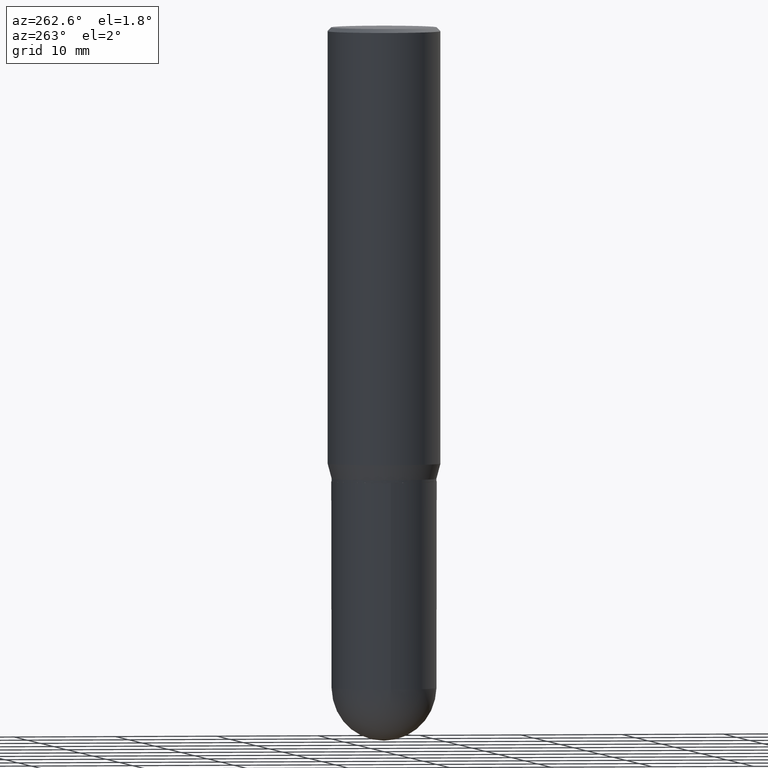
[diagram: clean part render]
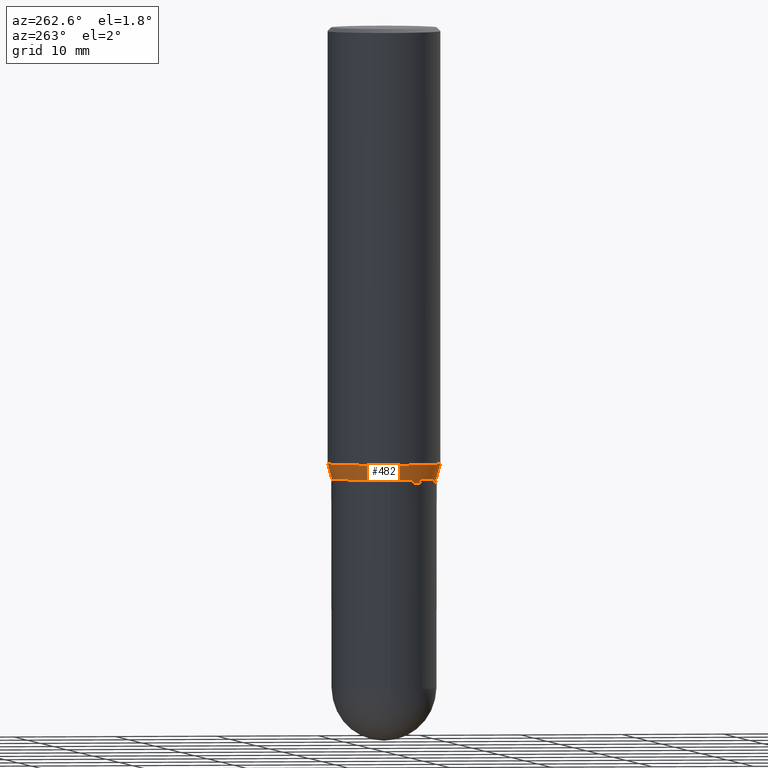
[diagram: same view with one face highlighted and labeled with its STEP entity id]
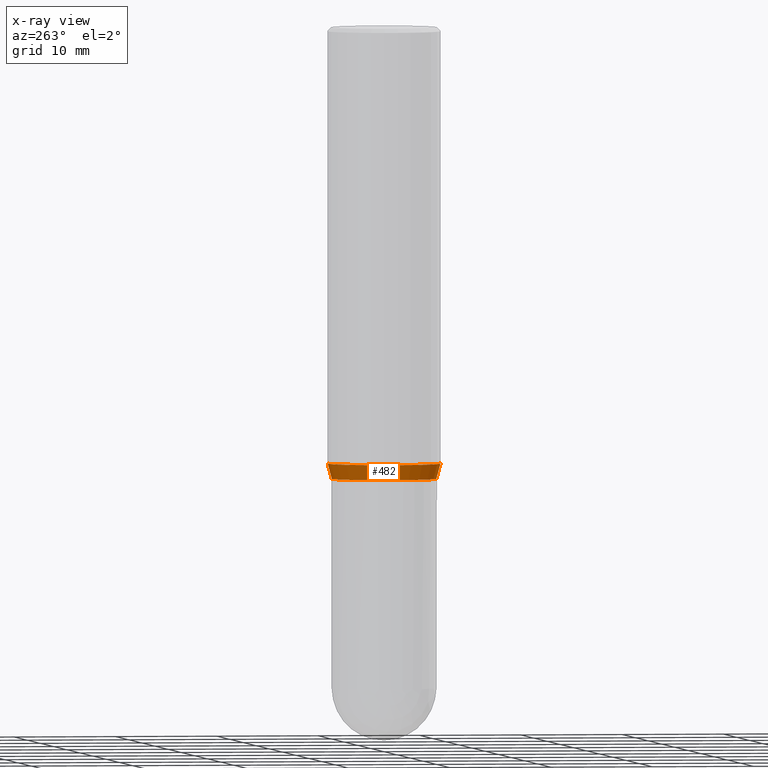
[diagram: x-ray of the same camera — body ghosted, the highlighted face saturated]
A machine part, auxiliary view. The second image highlights one B-rep face of the part: STEP entity #482.
The next image is the same camera in x-ray: the body ghosted, the highlighted face saturated — about 0% of this face is hidden behind the body in this view.
In plain terms, the highlighted conical surface has half-angle 15 deg.
Its self-contained STEP definition (entity closure, byte-faithful):
#2 = DIRECTION ( 'NONE',  ( -6.982962677686265133E-15, -1.000000000000000000, 3.746534391310989557E-15 ) ) ;
#5 = LINE ( 'NONE', #230, #276 ) ;
#23 = CIRCLE ( 'NONE', #270, 0.2030999999999999472 ) ;
#70 = LINE ( 'NONE', #470, #511 ) ;
#73 = CARTESIAN_POINT ( 'NONE',  ( -1.418239719838037782E-15, -0.2031000000000060257, -1.739999999999999103 ) ) ;
#93 = DIRECTION ( 'NONE',  ( -6.982962677686266711E-15, -1.000000000000000000, 4.035225987687243463E-15 ) ) ;
#116 = CONICAL_SURFACE ( 'NONE', #460, 0.2030999999999999472, 0.2617993877991492413 ) ;
#121 = CARTESIAN_POINT ( 'NONE',  ( 1.498712265402032742E-15, 0.2030999999999938688, -1.740000000000000879 ) ) ;
#130 = VERTEX_POINT ( 'NONE', #121 ) ;
#163 = ORIENTED_EDGE ( 'NONE', *, *, #366, .F. ) ;
#191 = DIRECTION ( 'NONE',  ( -6.982962677686266711E-15, -1.000000000000000000, 4.035225987687243463E-15 ) ) ;
#214 = AXIS2_PLACEMENT_3D ( 'NONE', #220, #360, #2 ) ;
#220 = CARTESIAN_POINT ( 'NONE',  ( 4.112226670313570876E-29, -5.871334401688686033E-15, -1.681593404861546848 ) ) ;
#230 = CARTESIAN_POINT ( 'NONE',  ( -1.418239719838037782E-15, -0.2031000000000060257, -1.739999999999999103 ) ) ;
#260 = CARTESIAN_POINT ( 'NONE',  ( -1.527523085743829428E-15, -0.2187500000000058287, -1.681593404861545960 ) ) ;
#262 = EDGE_CURVE ( 'NONE', #130, #449, #23, .T. ) ;
#270 = AXIS2_PLACEMENT_3D ( 'NONE', #351, #467, #93 ) ;
#274 = CARTESIAN_POINT ( 'NONE',  ( 4.255056178062698487E-29, -6.075262800985744342E-15, -1.739999999999999991 ) ) ;
#275 = DIRECTION ( 'NONE',  ( 1.839019923739593216E-15, 0.2588190451025239591, 0.9659258262890674240 ) ) ;
#276 = VECTOR ( 'NONE', #392, 39.37007874015748854 ) ;
#280 = EDGE_LOOP ( 'NONE', ( #328, #457, #409, #163 ) ) ;
#316 = FACE_OUTER_BOUND ( 'NONE', #280, .T. ) ;
#318 = VERTEX_POINT ( 'NONE', #260 ) ;
#321 = VERTEX_POINT ( 'NONE', #427 ) ;
#328 = ORIENTED_EDGE ( 'NONE', *, *, #401, .F. ) ;
#342 = EDGE_CURVE ( 'NONE', #449, #318, #5, .T. ) ;
#351 = CARTESIAN_POINT ( 'NONE',  ( 4.255056178062698487E-29, -6.075262800985744342E-15, -1.739999999999999991 ) ) ;
#360 = DIRECTION ( 'NONE',  ( -2.445434585093504913E-29, 3.491530345394105536E-15, 1.000000000000000000 ) ) ;
#366 = EDGE_CURVE ( 'NONE', #321, #318, #480, .T. ) ;
#392 = DIRECTION ( 'NONE',  ( -1.807323732225323040E-15, -0.2588190451025171868, 0.9659258262890693114 ) ) ;
#401 = EDGE_CURVE ( 'NONE', #130, #321, #70, .T. ) ;
#409 = ORIENTED_EDGE ( 'NONE', *, *, #342, .T. ) ;
#427 = CARTESIAN_POINT ( 'NONE',  ( 1.554312234475260177E-15, 0.2187499999999941436, -1.681593404861547736 ) ) ;
#430 = DIRECTION ( 'NONE',  ( -2.445434585093504913E-29, 3.491530345394105536E-15, 1.000000000000000000 ) ) ;
#449 = VERTEX_POINT ( 'NONE', #73 ) ;
#457 = ORIENTED_EDGE ( 'NONE', *, *, #262, .T. ) ;
#460 = AXIS2_PLACEMENT_3D ( 'NONE', #274, #430, #191 ) ;
#467 = DIRECTION ( 'NONE',  ( -2.445434585093504913E-29, 3.491530345394105536E-15, 1.000000000000000000 ) ) ;
#470 = CARTESIAN_POINT ( 'NONE',  ( 1.443112296328805307E-15, 0.2030999999999938688, -1.740000000000000879 ) ) ;
#480 = CIRCLE ( 'NONE', #214, 0.2187500000000000000 ) ;
#482 = ADVANCED_FACE ( 'NONE', ( #316 ), #116, .T. ) ;
#511 = VECTOR ( 'NONE', #275, 39.37007874015748143 ) ;